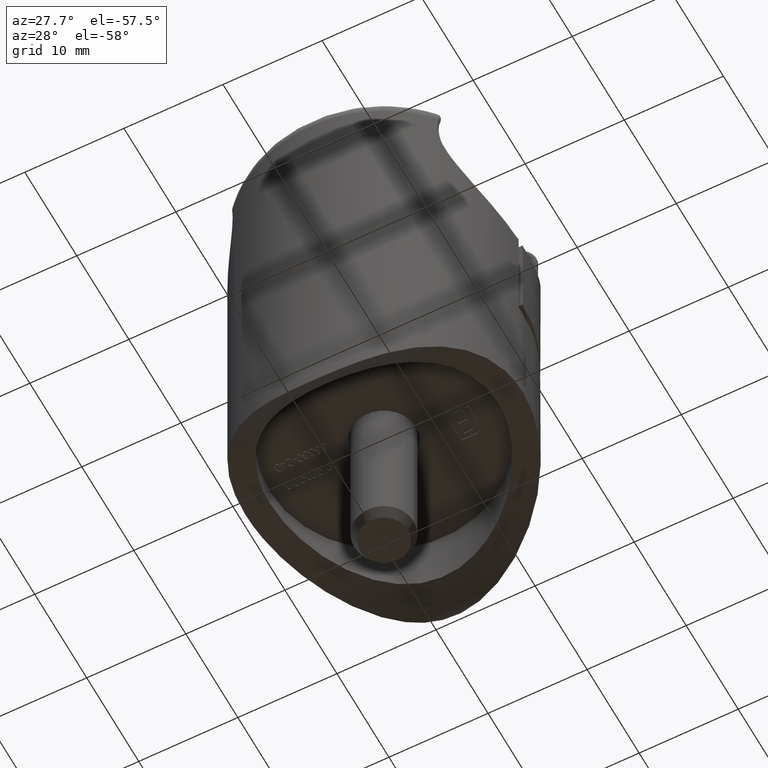
[diagram: clean part render]
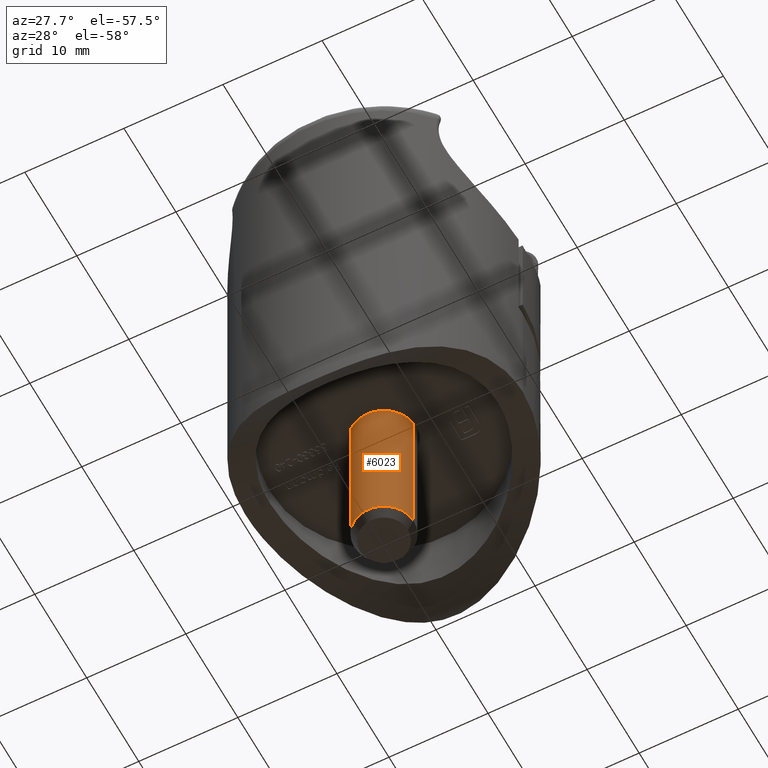
[diagram: same view with one face highlighted and labeled with its STEP entity id]
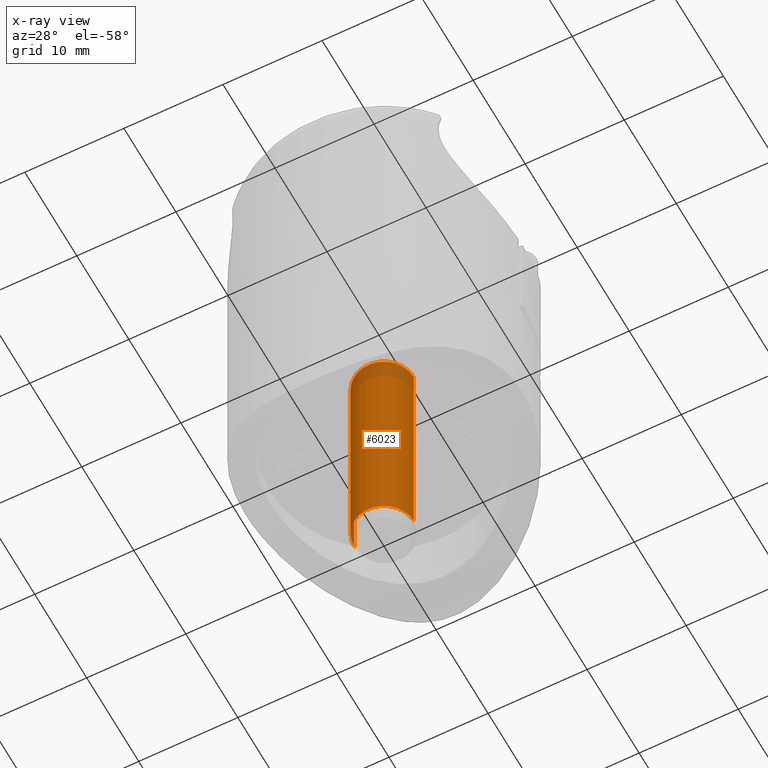
[diagram: x-ray of the same camera — body ghosted, the highlighted face saturated]
A machine part, auxiliary view. The second image highlights one B-rep face of the part: STEP entity #6023.
The next image is the same camera in x-ray: the body ghosted, the highlighted face saturated — about 10% of this face is hidden behind the body in this view.
In plain terms, the highlighted cylindrical surface (edge-blend (fillet) strip) has radius 3 mm, axis along (0, 0, 1).
Its self-contained STEP definition (entity closure, byte-faithful):
#229 = EDGE_CURVE ( 'NONE', #19001, #8615, #5416, .T. ) ;
#387 = ORIENTED_EDGE ( 'NONE', *, *, #229, .T. ) ;
#659 = VERTEX_POINT ( 'NONE', #4665 ) ;
#1108 = FACE_OUTER_BOUND ( 'NONE', #6048, .T. ) ;
#1177 = ORIENTED_EDGE ( 'NONE', *, *, #10519, .T. ) ;
#2092 = DIRECTION ( 'NONE',  ( -0.000000000000000000, 1.000000000000000000, -0.000000000000000000 ) ) ;
#2902 = ORIENTED_EDGE ( 'NONE', *, *, #19942, .F. ) ;
#4653 = DIRECTION ( 'NONE',  ( -0.000000000000000000, -1.000000000000000000, -0.000000000000000000 ) ) ;
#4665 = CARTESIAN_POINT ( 'NONE',  ( 3.673940397442060361E-16, 0.000000000000000000, -3.000000000000000444 ) ) ;
#5416 = LINE ( 'NONE', #6707, #13701 ) ;
#5492 = CARTESIAN_POINT ( 'NONE',  ( 0.000000000000000000, 0.000000000000000000, 2.999999999999896083 ) ) ;
#5962 = DIRECTION ( 'NONE',  ( 0.000000000000000000, 1.000000000000000000, 0.000000000000000000 ) ) ;
#6023 = ADVANCED_FACE ( 'NONE', ( #1108 ), #14390, .T. ) ;
#6048 = EDGE_LOOP ( 'NONE', ( #2902, #1177, #387, #20669 ) ) ;
#6347 = DIRECTION ( 'NONE',  ( 0.000000000000000000, 0.000000000000000000, 1.000000000000000000 ) ) ;
#6384 = AXIS2_PLACEMENT_3D ( 'NONE', #11089, #4653, #6347 ) ;
#6707 = CARTESIAN_POINT ( 'NONE',  ( 0.000000000000000000, -25.00000000000000355, 2.999999999999896083 ) ) ;
#7238 = CARTESIAN_POINT ( 'NONE',  ( 0.000000000000000000, -24.00000000000000355, 3.000000000000000444 ) ) ;
#7734 = LINE ( 'NONE', #16542, #11455 ) ;
#8615 = VERTEX_POINT ( 'NONE', #5492 ) ;
#9619 = CARTESIAN_POINT ( 'NONE',  ( 3.673940397442060361E-16, -24.00000000000000355, -3.000000000000000444 ) ) ;
#10519 = EDGE_CURVE ( 'NONE', #15008, #19001, #14918, .T. ) ;
#11089 = CARTESIAN_POINT ( 'NONE',  ( 0.000000000000000000, 0.000000000000000000, 0.000000000000000000 ) ) ;
#11455 = VECTOR ( 'NONE', #11633, 1000.000000000000000 ) ;
#11480 = EDGE_CURVE ( 'NONE', #8615, #659, #15388, .T. ) ;
#11633 = DIRECTION ( 'NONE',  ( 0.000000000000000000, 1.000000000000000000, 0.000000000000000000 ) ) ;
#11992 = AXIS2_PLACEMENT_3D ( 'NONE', #19649, #2092, #13305 ) ;
#12270 = CARTESIAN_POINT ( 'NONE',  ( 0.000000000000000000, -25.00000000000000355, 0.000000000000000000 ) ) ;
#13305 = DIRECTION ( 'NONE',  ( 0.000000000000000000, 0.000000000000000000, -1.000000000000000000 ) ) ;
#13701 = VECTOR ( 'NONE', #18177, 1000.000000000000000 ) ;
#14013 = AXIS2_PLACEMENT_3D ( 'NONE', #12270, #5962, #14293 ) ;
#14293 = DIRECTION ( 'NONE',  ( 0.000000000000000000, 0.000000000000000000, 1.000000000000000000 ) ) ;
#14390 = CYLINDRICAL_SURFACE ( 'NONE', #14013, 2.999999999999896083 ) ;
#14918 = CIRCLE ( 'NONE', #11992, 2.999999999999896083 ) ;
#15008 = VERTEX_POINT ( 'NONE', #9619 ) ;
#15388 = CIRCLE ( 'NONE', #6384, 2.999999999999896083 ) ;
#16542 = CARTESIAN_POINT ( 'NONE',  ( 3.673940397441932171E-16, -25.00000000000000355, -2.999999999999896083 ) ) ;
#18177 = DIRECTION ( 'NONE',  ( 0.000000000000000000, 1.000000000000000000, 0.000000000000000000 ) ) ;
#19001 = VERTEX_POINT ( 'NONE', #7238 ) ;
#19649 = CARTESIAN_POINT ( 'NONE',  ( 0.000000000000000000, -24.00000000000000355, 0.000000000000000000 ) ) ;
#19942 = EDGE_CURVE ( 'NONE', #15008, #659, #7734, .T. ) ;
#20669 = ORIENTED_EDGE ( 'NONE', *, *, #11480, .T. ) ;